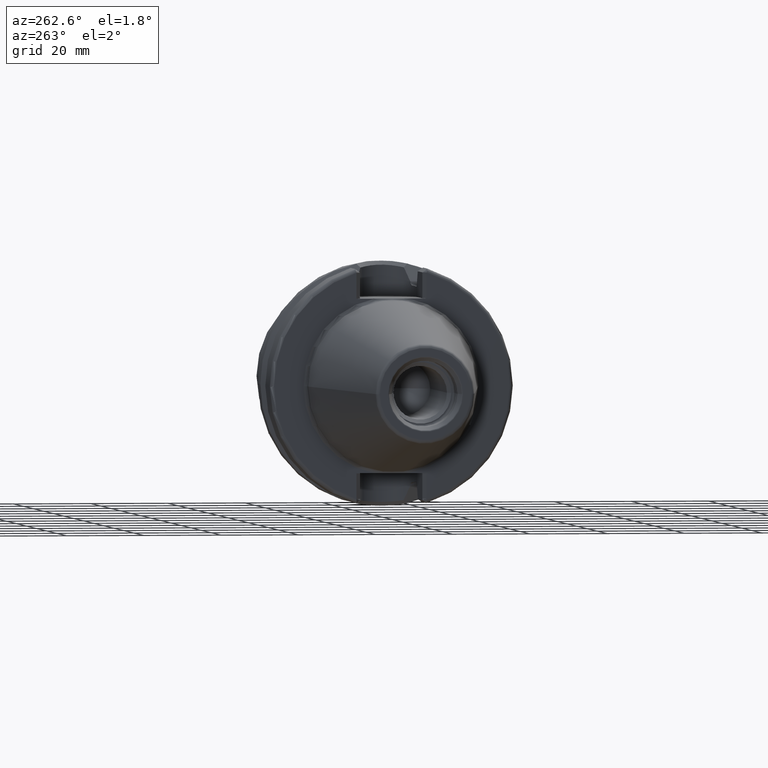
[diagram: clean part render]
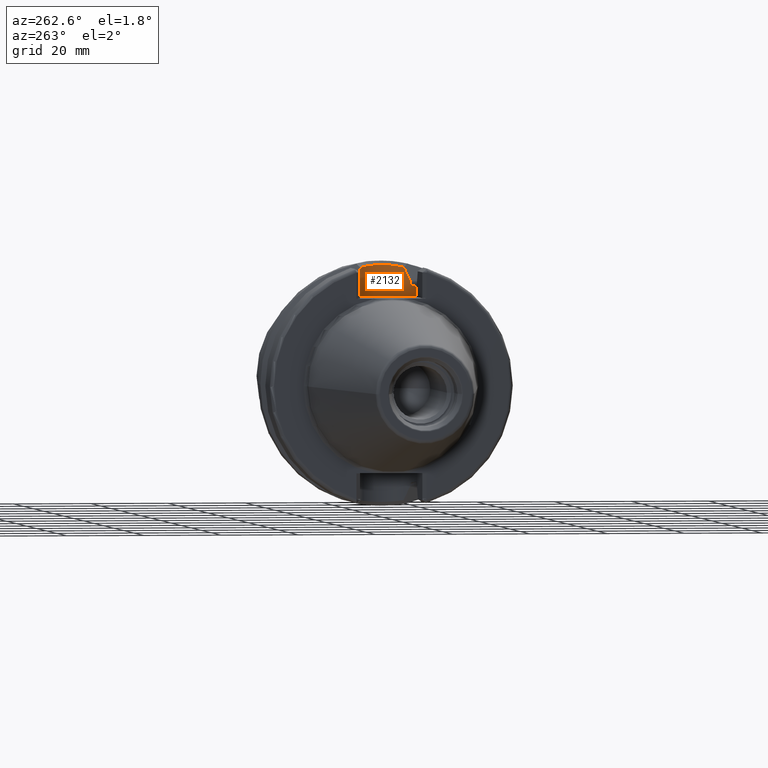
[diagram: same view with one face highlighted and labeled with its STEP entity id]
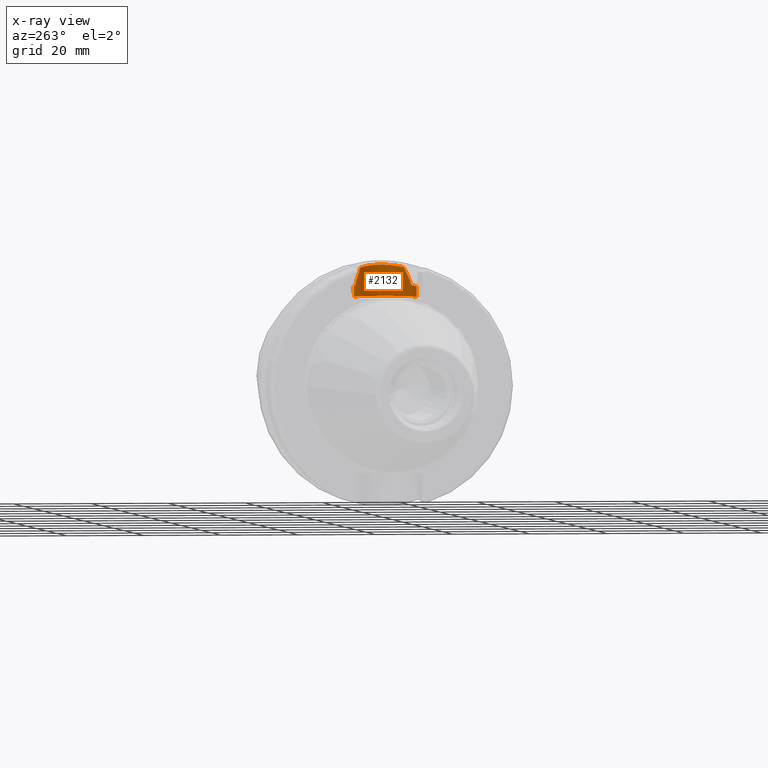
[diagram: x-ray of the same camera — body ghosted, the highlighted face saturated]
A machine part, auxiliary view. The second image highlights one B-rep face of the part: STEP entity #2132.
The next image is the same camera in x-ray: the body ghosted, the highlighted face saturated — about 0% of this face is hidden behind the body in this view.
In plain terms, the highlighted cylindrical surface (edge-blend (fillet) strip) has radius 8.095 mm, axis along (0, 0, 1).
Its self-contained STEP definition (entity closure, byte-faithful):
#360=CARTESIAN_POINT('',(1.83875E1,7.421588020768E0,2.530929979770E1));
#361=CARTESIAN_POINT('',(1.804170386658E1,7.572200800424E0,2.526513476705E1));
#362=CARTESIAN_POINT('',(1.734035783533E1,7.820815510938E0,2.518941465745E1));
#363=CARTESIAN_POINT('',(1.625266243215E1,8.045449937199E0,2.511808739773E1));
#364=CARTESIAN_POINT('',(1.552274115811E1,8.095E0,2.510202382279E1));
#365=CARTESIAN_POINT('',(1.5155E1,8.095E0,2.510202382279E1));
#379=CARTESIAN_POINT('',(1.5155E1,-8.095E0,2.510202382279E1));
#380=CARTESIAN_POINT('',(1.552274116086E1,-8.095E0,2.510202382279E1));
#381=CARTESIAN_POINT('',(1.625266243851E1,-8.045449936191E0,2.511808739805E1));
#382=CARTESIAN_POINT('',(1.734035783411E1,-7.820815511030E0,2.518941465742E1));
#383=CARTESIAN_POINT('',(1.804170386611E1,-7.572200800631E0,2.526513476699E1));
#384=CARTESIAN_POINT('',(1.83875E1,-7.421588020768E0,2.530929979770E1));
#470=DIRECTION('',(0.E0,0.E0,1.E0));
#471=VECTOR('',#470,2.652023822792E0);
#472=CARTESIAN_POINT('',(1.5155E1,-8.095E0,2.245E1));
#473=LINE('',#472,#471);
#474=CARTESIAN_POINT('',(1.91375E1,7.047603759435E0,2.619345159100E1));
#475=CARTESIAN_POINT('',(1.91375E1,7.047603759435E0,2.612998725804E1));
#476=CARTESIAN_POINT('',(1.912324356271E1,7.055692563985E0,2.600243680224E1));
#477=CARTESIAN_POINT('',(1.905138585928E1,7.095863125167E0,2.579909751285E1));
#478=CARTESIAN_POINT('',(1.893129669655E1,7.160762150281E0,2.561408219456E1));
#479=CARTESIAN_POINT('',(1.877499389890E1,7.241428280265E0,2.546209548146E1));
#480=CARTESIAN_POINT('',(1.857872916820E1,7.336410466726E0,2.535018075128E1));
#481=CARTESIAN_POINT('',(1.845215642376E1,7.393426677236E0,2.531755770651E1));
#482=CARTESIAN_POINT('',(1.83875E1,7.421588020768E0,2.530929979770E1));
#484=DIRECTION('',(0.E0,0.E0,1.E0));
#485=VECTOR('',#484,5.185648086091E-2);
#486=CARTESIAN_POINT('',(1.91375E1,7.047603759435E0,2.619345159100E1));
#487=LINE('',#486,#485);
#488=CARTESIAN_POINT('',(2.097101805574E1,5.630538071564E0,2.982397761288E1));
#489=CARTESIAN_POINT('',(2.082604881782E1,5.780282855198E0,2.954017722398E1));
#490=CARTESIAN_POINT('',(2.053095055184E1,6.062081832034E0,2.896282820239E1));
#491=CARTESIAN_POINT('',(2.007321533351E1,6.438417817754E0,2.806855111877E1));
#492=CARTESIAN_POINT('',(1.960693883943E1,6.768577999667E0,2.715904469241E1));
#493=CARTESIAN_POINT('',(1.929432982957E1,6.958981467721E0,2.655036595187E1));
#494=CARTESIAN_POINT('',(1.91375E1,7.047603759435E0,2.624530807186E1));
#496=CARTESIAN_POINT('',(2.097101805574E1,5.630538071564E0,2.982397761288E1));
#497=CARTESIAN_POINT('',(2.105934811851E1,5.539315465481E0,2.984571977166E1));
#498=CARTESIAN_POINT('',(2.147664953399E1,5.087469676785E0,2.995066553172E1));
#499=CARTESIAN_POINT('',(2.213089910678E1,4.192993541984E0,3.013266724858E1));
#500=CARTESIAN_POINT('',(2.276760940421E1,2.877975365343E0,3.032860010333E1));
#501=CARTESIAN_POINT('',(2.315790479168E1,1.477331724989E0,3.045642416986E1));
#502=CARTESIAN_POINT('',(2.329282459092E1,3.489574686597E-2,3.050195760374E1));
#503=CARTESIAN_POINT('',(2.317034749764E1,-1.407990407149E0,3.046059480761E1));
#504=CARTESIAN_POINT('',(2.279239912771E1,-2.811458890034E0,3.033654610003E1));
#505=CARTESIAN_POINT('',(2.216739173750E1,-4.131625063197E0,3.014347060785E1));
#506=CARTESIAN_POINT('',(2.150727212273E1,-5.051007781490E0,2.995873684149E1));
#507=CARTESIAN_POINT('',(2.107584322555E1,-5.522277501799E0,2.984978414564E1));
#508=CARTESIAN_POINT('',(2.097101986641E1,-5.630536201239E0,2.982398115757E1));
#510=CARTESIAN_POINT('',(1.91375E1,-7.047603759435E0,2.624530807186E1));
#511=CARTESIAN_POINT('',(1.929439846909E1,-6.958942680509E0,2.655049946618E1));
#512=CARTESIAN_POINT('',(1.960708097731E1,-6.768483112184E0,2.715932176805E1));
#513=CARTESIAN_POINT('',(2.007318172595E1,-6.438434899025E0,2.806848574420E1));
#514=CARTESIAN_POINT('',(2.053077179900E1,-6.062239171320E0,2.896247872395E1));
#515=CARTESIAN_POINT('',(2.082597009394E1,-5.780364268794E0,2.954002310797E1));
#516=CARTESIAN_POINT('',(2.097101986641E1,-5.630536201239E0,2.982398115757E1));
#518=DIRECTION('',(0.E0,0.E0,1.E0));
#519=VECTOR('',#518,5.185648086090E-2);
#520=CARTESIAN_POINT('',(1.91375E1,-7.047603759435E0,2.619345159100E1));
#521=LINE('',#520,#519);
#522=CARTESIAN_POINT('',(1.83875E1,-7.421588020768E0,2.530929979770E1));
#523=CARTESIAN_POINT('',(1.845215642376E1,-7.393426677236E0,2.531755770651E1));
#524=CARTESIAN_POINT('',(1.857872916820E1,-7.336410466726E0,2.535018075128E1));
#525=CARTESIAN_POINT('',(1.877499389890E1,-7.241428280265E0,2.546209548146E1));
#526=CARTESIAN_POINT('',(1.893129669655E1,-7.160762150281E0,2.561408219456E1));
#527=CARTESIAN_POINT('',(1.905138585928E1,-7.095863125167E0,2.579909751285E1));
#528=CARTESIAN_POINT('',(1.912324356271E1,-7.055692563985E0,2.600243680224E1));
#529=CARTESIAN_POINT('',(1.91375E1,-7.047603759435E0,2.612998725804E1));
#530=CARTESIAN_POINT('',(1.91375E1,-7.047603759435E0,2.619345159100E1));
#661=DIRECTION('',(0.E0,0.E0,1.E0));
#662=VECTOR('',#661,2.652023822792E0);
#663=CARTESIAN_POINT('',(1.5155E1,8.095E0,2.245E1));
#664=LINE('',#663,#662);
#696=CARTESIAN_POINT('',(1.5155E1,0.E0,2.245E1));
#697=DIRECTION('',(0.E0,0.E0,1.E0));
#698=DIRECTION('',(0.E0,-1.E0,0.E0));
#699=AXIS2_PLACEMENT_3D('',#696,#697,#698);
#1338=CARTESIAN_POINT('',(1.91375E1,-7.047603759435E0,2.619345159100E1));
#1340=VERTEX_POINT('',#1338);
#1343=CARTESIAN_POINT('',(1.83875E1,-7.421588020768E0,2.530929979770E1));
#1345=VERTEX_POINT('',#1343);
#1346=CARTESIAN_POINT('',(1.83875E1,7.421588020768E0,2.530929979770E1));
#1348=VERTEX_POINT('',#1346);
#1351=CARTESIAN_POINT('',(1.91375E1,7.047603759435E0,2.619345159100E1));
#1353=VERTEX_POINT('',#1351);
#1354=CARTESIAN_POINT('',(1.91375E1,7.047603759435E0,2.624530807186E1));
#1356=VERTEX_POINT('',#1354);
#1359=CARTESIAN_POINT('',(1.91375E1,-7.047603759435E0,2.624530807186E1));
#1361=VERTEX_POINT('',#1359);
#1452=CARTESIAN_POINT('',(1.5155E1,-8.095E0,2.245E1));
#1453=CARTESIAN_POINT('',(1.5155E1,8.095E0,2.245E1));
#1454=VERTEX_POINT('',#1452);
#1455=VERTEX_POINT('',#1453);
#1468=CARTESIAN_POINT('',(1.5155E1,8.095E0,2.510202382279E1));
#1469=VERTEX_POINT('',#1468);
#1471=CARTESIAN_POINT('',(1.5155E1,-8.095E0,2.510202382279E1));
#1472=VERTEX_POINT('',#1471);
#1474=VERTEX_POINT('',#516);
#1475=VERTEX_POINT('',#488);
#2107=CARTESIAN_POINT('',(1.5155E1,0.E0,2.245E1));
#2108=DIRECTION('',(0.E0,0.E0,1.E0));
#2109=DIRECTION('',(1.E0,0.E0,0.E0));
#2110=AXIS2_PLACEMENT_3D('',#2107,#2108,#2109);
#2111=CYLINDRICAL_SURFACE('',#2110,8.095E0);
#2112=ORIENTED_EDGE('',*,*,#2016,.F.);
#2114=ORIENTED_EDGE('',*,*,#2113,.F.);
#2116=ORIENTED_EDGE('',*,*,#2115,.T.);
#2118=ORIENTED_EDGE('',*,*,#2117,.T.);
#2119=ORIENTED_EDGE('',*,*,#1998,.F.);
#2120=ORIENTED_EDGE('',*,*,#2089,.F.);
#2121=ORIENTED_EDGE('',*,*,#2061,.T.);
#2123=ORIENTED_EDGE('',*,*,#2122,.F.);
#2125=ORIENTED_EDGE('',*,*,#2124,.T.);
#2127=ORIENTED_EDGE('',*,*,#2126,.F.);
#2128=ORIENTED_EDGE('',*,*,#2073,.F.);
#2129=ORIENTED_EDGE('',*,*,#2102,.F.);
#2130=EDGE_LOOP('',(#2112,#2114,#2116,#2118,#2119,#2120,#2121,#2123,#2125,#2127,
#2128,#2129));
#2131=FACE_OUTER_BOUND('',#2130,.F.);
#2132=ADVANCED_FACE('',(#2131),#2111,.F.);
#366=B_SPLINE_CURVE_WITH_KNOTS('',3,(#360,#361,#362,#363,#364,#365),
.UNSPECIFIED.,.F.,.F.,(4,1,1,4),(0.E0,3.333333333333E-1,6.666666666667E-1,1.E0),
.UNSPECIFIED.);
#385=B_SPLINE_CURVE_WITH_KNOTS('',3,(#379,#380,#381,#382,#383,#384),
.UNSPECIFIED.,.F.,.F.,(4,1,1,4),(0.E0,3.333333333333E-1,6.666666666667E-1,1.E0),
.UNSPECIFIED.);
#483=B_SPLINE_CURVE_WITH_KNOTS('',3,(#474,#475,#476,#477,#478,#479,#480,#481,
#482),.UNSPECIFIED.,.F.,.F.,(4,1,1,1,1,1,4),(0.E0,1.666666666667E-1,
3.333333333333E-1,5.E-1,6.666666666667E-1,8.333333333333E-1,1.E0),
.UNSPECIFIED.);
#495=B_SPLINE_CURVE_WITH_KNOTS('',3,(#488,#489,#490,#491,#492,#493,#494),
.UNSPECIFIED.,.F.,.F.,(4,1,1,1,4),(0.E0,2.5E-1,5.E-1,7.5E-1,1.E0),
.UNSPECIFIED.);
#509=B_SPLINE_CURVE_WITH_KNOTS('',3,(#496,#497,#498,#499,#500,#501,#502,#503,
#504,#505,#506,#507,#508),.UNSPECIFIED.,.F.,.F.,(4,1,1,1,1,1,1,1,1,1,4),(0.E0,
3.038567668919E-2,1.470802694969E-1,2.637748623046E-1,3.804694551124E-1,
4.971640479201E-1,6.138586407278E-1,7.305532335355E-1,8.472478263433E-1,
9.639424191510E-1,1.E0),.UNSPECIFIED.);
#517=B_SPLINE_CURVE_WITH_KNOTS('',3,(#510,#511,#512,#513,#514,#515,#516),
.UNSPECIFIED.,.F.,.F.,(4,1,1,1,4),(0.E0,2.5E-1,5.E-1,7.5E-1,1.E0),
.UNSPECIFIED.);
#531=B_SPLINE_CURVE_WITH_KNOTS('',3,(#522,#523,#524,#525,#526,#527,#528,#529,
#530),.UNSPECIFIED.,.F.,.F.,(4,1,1,1,1,1,4),(0.E0,1.666666666667E-1,
3.333333333333E-1,5.E-1,6.666666666667E-1,8.333333333333E-1,1.E0),
.UNSPECIFIED.);
#700=CIRCLE('',#699,8.095E0);
#1998=EDGE_CURVE('',#1348,#1469,#366,.T.);
#2016=EDGE_CURVE('',#1472,#1345,#385,.T.);
#2061=EDGE_CURVE('',#1353,#1356,#487,.T.);
#2073=EDGE_CURVE('',#1340,#1361,#521,.T.);
#2089=EDGE_CURVE('',#1353,#1348,#483,.T.);
#2102=EDGE_CURVE('',#1345,#1340,#531,.T.);
#2113=EDGE_CURVE('',#1454,#1472,#473,.T.);
#2115=EDGE_CURVE('',#1454,#1455,#700,.T.);
#2117=EDGE_CURVE('',#1455,#1469,#664,.T.);
#2122=EDGE_CURVE('',#1475,#1356,#495,.T.);
#2124=EDGE_CURVE('',#1475,#1474,#509,.T.);
#2126=EDGE_CURVE('',#1361,#1474,#517,.T.);